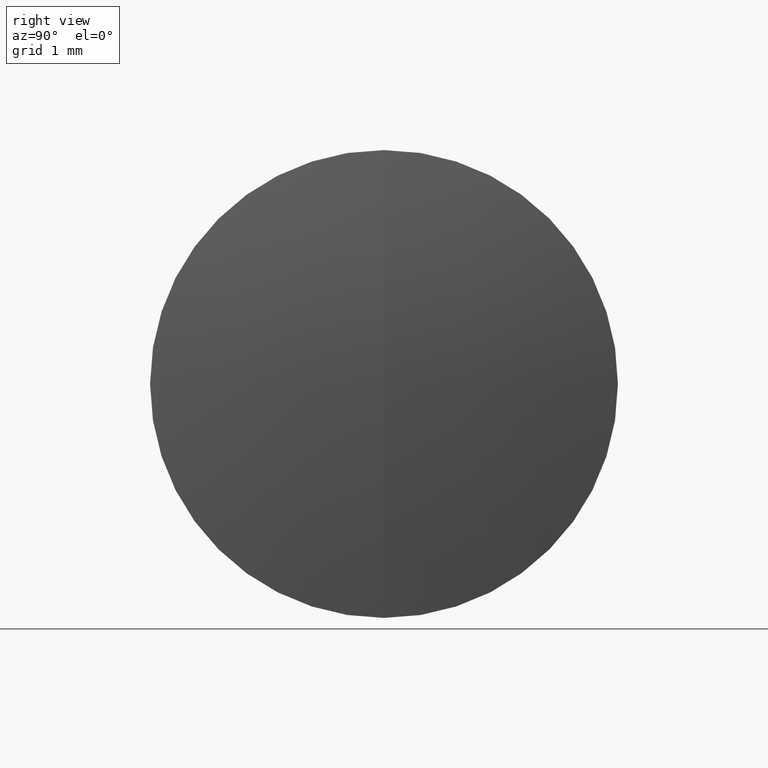
[diagram: clean part render]
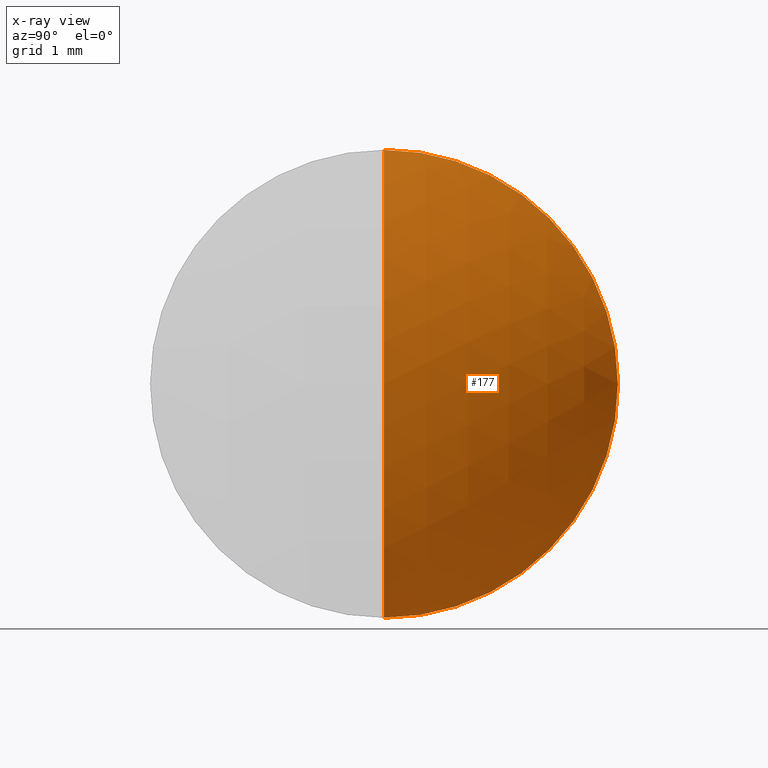
[diagram: x-ray — body ghosted, one internal face saturated and labeled with its STEP entity id]
A machine part, right view, then the same camera in x-ray: the body is ghosted and one INTERNAL B-rep face — a face not visible from any outside direction — is saturated and labeled: STEP entity #177.
In plain terms, the highlighted spherical surface has radius 4.6 mm.
Its self-contained STEP definition (entity closure, byte-faithful):
#6 = DIRECTION ( 'NONE',  ( 0.0000000000000000000, -1.000000000000000000, 0.0000000000000000000 ) ) ;
#8 = CARTESIAN_POINT ( 'NONE',  ( 2.881554070428458100, 0.0000000000000000000, 3.000000000000000000 ) ) ;
#10 = AXIS2_PLACEMENT_3D ( 'NONE', #57, #6, #75 ) ;
#30 = CARTESIAN_POINT ( 'NONE',  ( -0.6055650844040809700, 0.0000000000000000000, 3.388131789017201400E-018 ) ) ;
#36 = AXIS2_PLACEMENT_3D ( 'NONE', #339, #196, #314 ) ;
#57 = CARTESIAN_POINT ( 'NONE',  ( -0.6055650844040809700, 0.0000000000000000000, 3.388131789017201400E-018 ) ) ;
#64 = EDGE_CURVE ( 'NONE', #232, #132, #79, .T. ) ;
#75 = DIRECTION ( 'NONE',  ( 0.0000000000000000000, 0.0000000000000000000, -1.000000000000000000 ) ) ;
#79 = CIRCLE ( 'NONE', #10, 4.599999999999999600 ) ;
#91 = DIRECTION ( 'NONE',  ( 0.0000000000000000000, -1.224646799147353200E-016, 1.000000000000000000 ) ) ;
#94 = DIRECTION ( 'NONE',  ( -1.000000000000000000, -0.0000000000000000000, -0.0000000000000000000 ) ) ;
#108 = CARTESIAN_POINT ( 'NONE',  ( 2.881554070428458100, 0.0000000000000000000, 0.0000000000000000000 ) ) ;
#122 = SPHERICAL_SURFACE ( 'NONE', #36, 4.599999999999999600 ) ;
#132 = VERTEX_POINT ( 'NONE', #8 ) ;
#136 = DIRECTION ( 'NONE',  ( -0.0000000000000000000, 1.000000000000000000, 1.224646799147353200E-016 ) ) ;
#144 = EDGE_CURVE ( 'NONE', #132, #227, #281, .T. ) ;
#162 = ORIENTED_EDGE ( 'NONE', *, *, #64, .F. ) ;
#177 = ADVANCED_FACE ( 'NONE', ( #329 ), #122, .T. ) ;
#196 = DIRECTION ( 'NONE',  ( 0.0000000000000000000, 1.000000000000000000, 0.0000000000000000000 ) ) ;
#227 = VERTEX_POINT ( 'NONE', #337 ) ;
#232 = VERTEX_POINT ( 'NONE', #244 ) ;
#244 = CARTESIAN_POINT ( 'NONE',  ( 3.994434915595919100, 0.0000000000000000000, 2.850568955929084100E-016 ) ) ;
#248 = AXIS2_PLACEMENT_3D ( 'NONE', #30, #136, #91 ) ;
#252 = EDGE_LOOP ( 'NONE', ( #162, #301, #283 ) ) ;
#275 = DIRECTION ( 'NONE',  ( 0.0000000000000000000, 0.0000000000000000000, 1.000000000000000000 ) ) ;
#281 = CIRCLE ( 'NONE', #341, 3.000000000000000000 ) ;
#283 = ORIENTED_EDGE ( 'NONE', *, *, #144, .F. ) ;
#285 = EDGE_CURVE ( 'NONE', #232, #227, #338, .T. ) ;
#301 = ORIENTED_EDGE ( 'NONE', *, *, #285, .T. ) ;
#314 = DIRECTION ( 'NONE',  ( 0.0000000000000000000, 0.0000000000000000000, 1.000000000000000000 ) ) ;
#329 = FACE_OUTER_BOUND ( 'NONE', #252, .T. ) ;
#337 = CARTESIAN_POINT ( 'NONE',  ( 2.881554070428458100, 3.673940397442059900E-016, -3.000000000000000000 ) ) ;
#338 = CIRCLE ( 'NONE', #248, 4.599999999999999600 ) ;
#339 = CARTESIAN_POINT ( 'NONE',  ( -0.6055650844040809700, 0.0000000000000000000, 3.388131789017201400E-018 ) ) ;
#341 = AXIS2_PLACEMENT_3D ( 'NONE', #108, #94, #275 ) ;